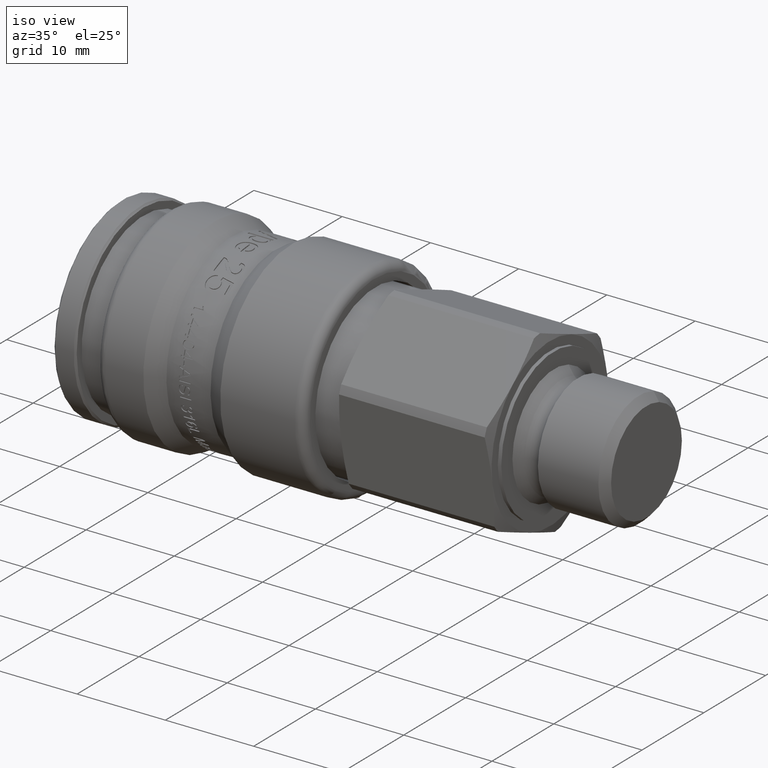
[diagram: clean part render]
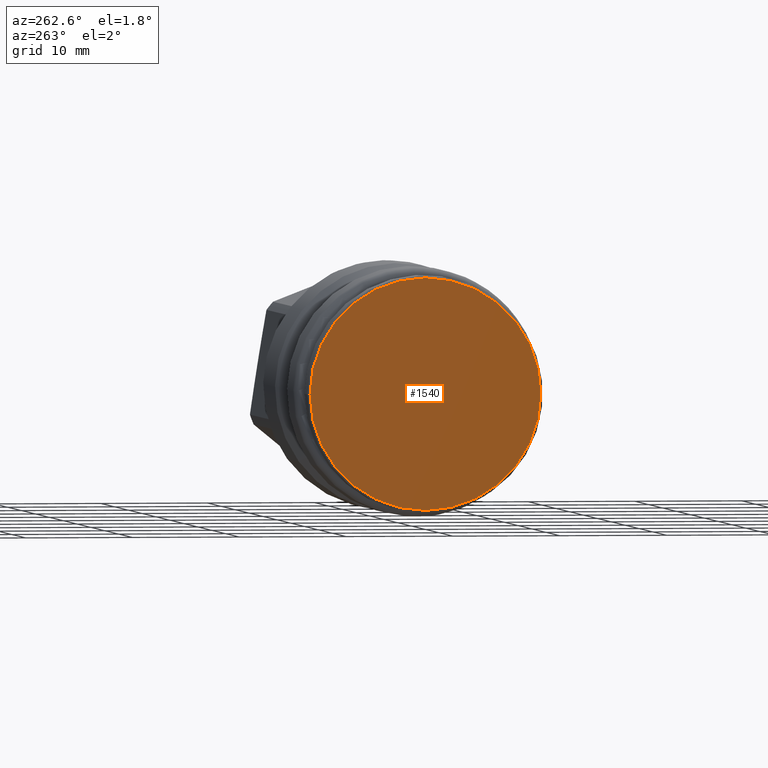
[diagram: tour spotlight — one face highlighted and labeled with its STEP entity id]
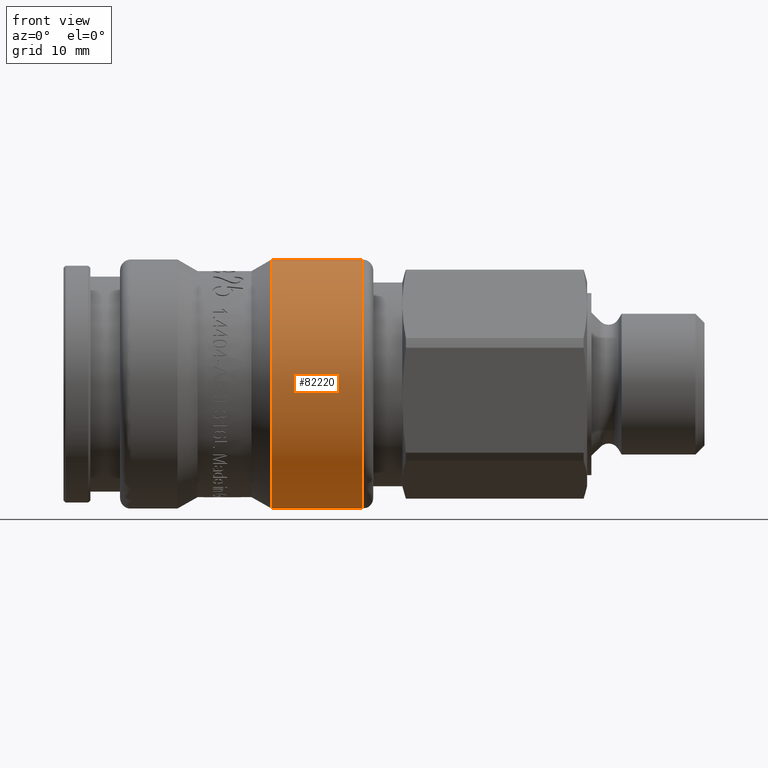
[diagram: tour spotlight — one face highlighted and labeled with its STEP entity id]
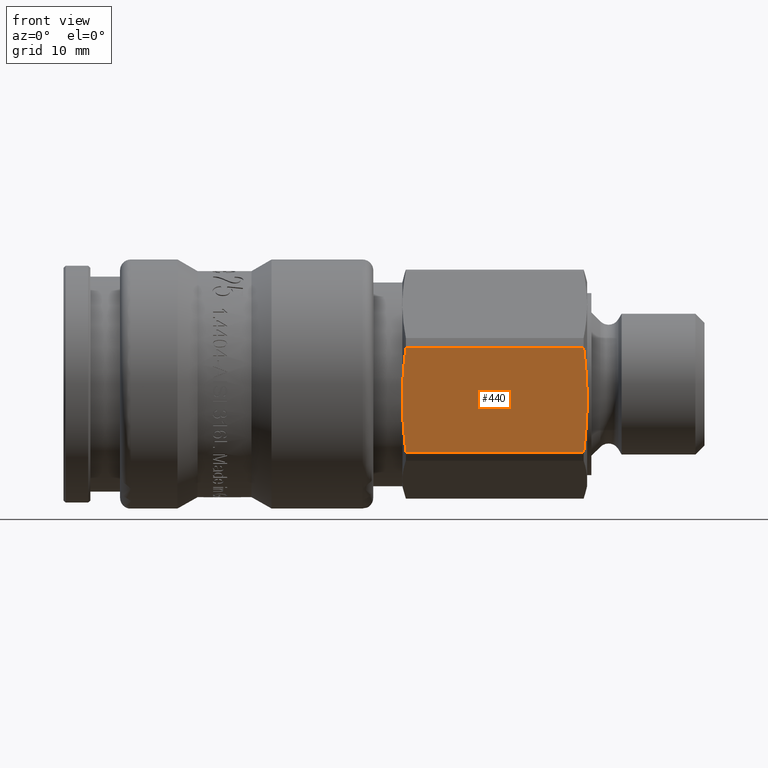
[diagram: tour spotlight — one face highlighted and labeled with its STEP entity id]
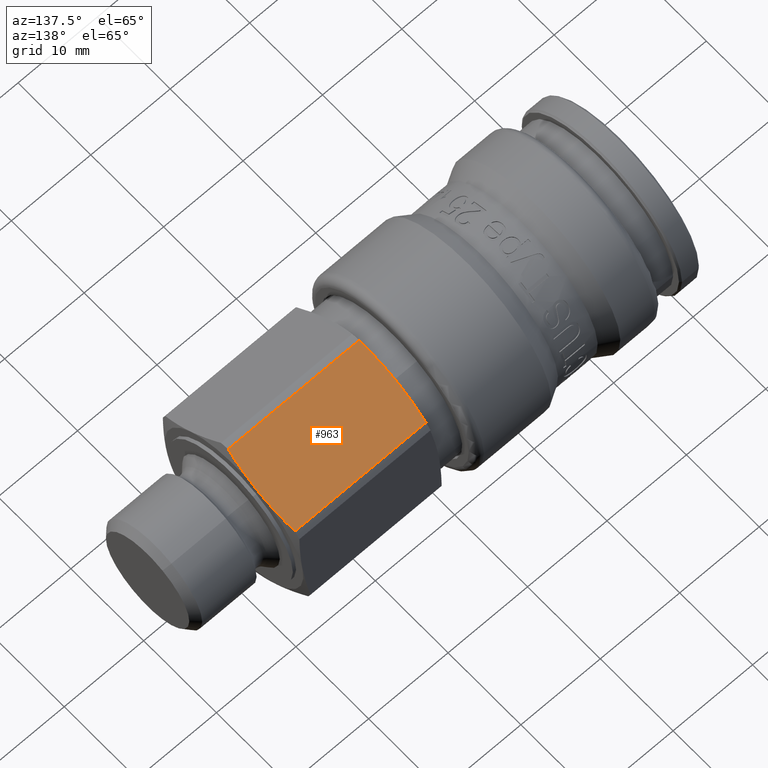
[diagram: tour spotlight — one face highlighted and labeled with its STEP entity id]
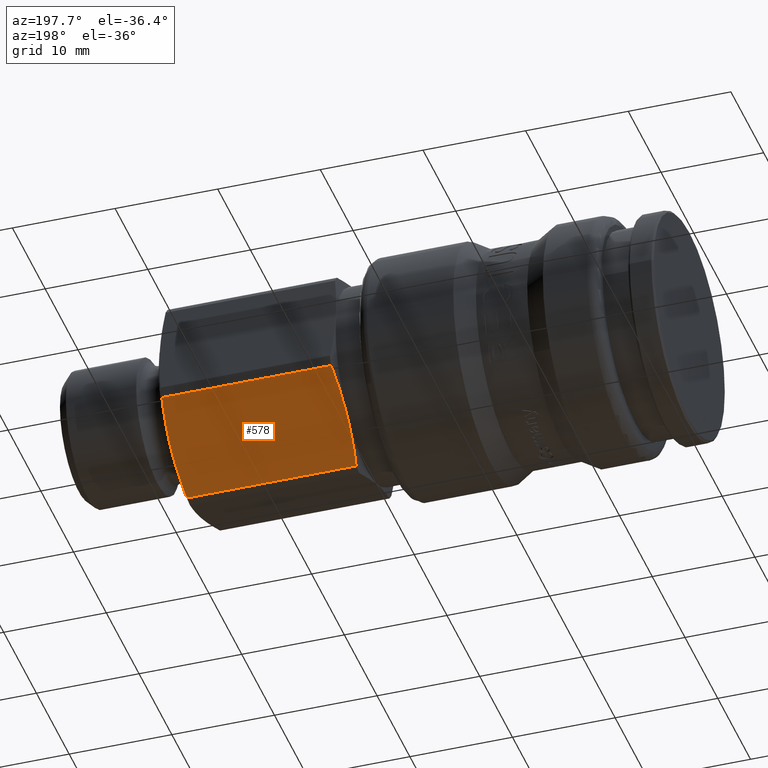
[diagram: tour spotlight — one face highlighted and labeled with its STEP entity id]
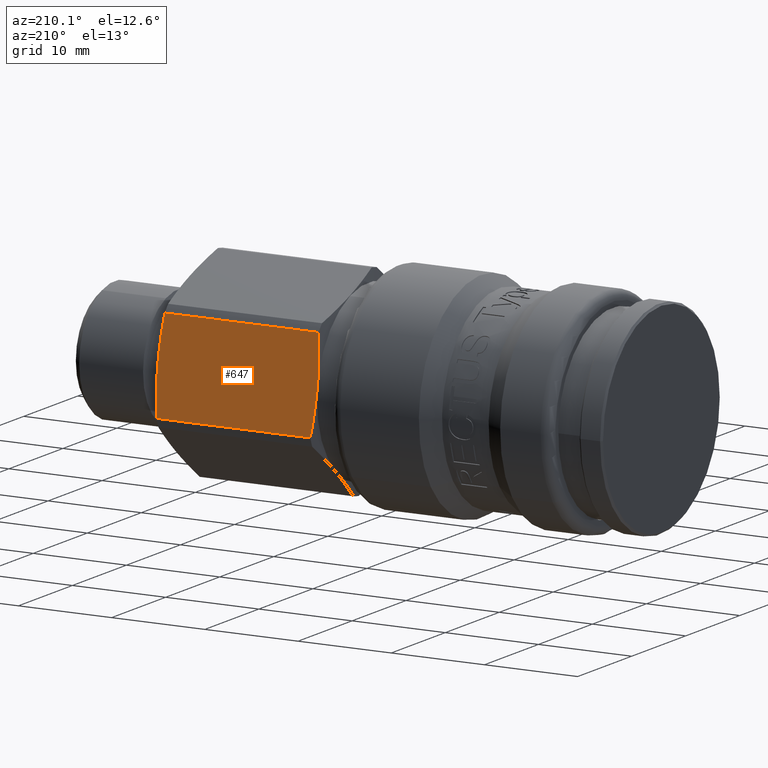
[diagram: tour spotlight — one face highlighted and labeled with its STEP entity id]
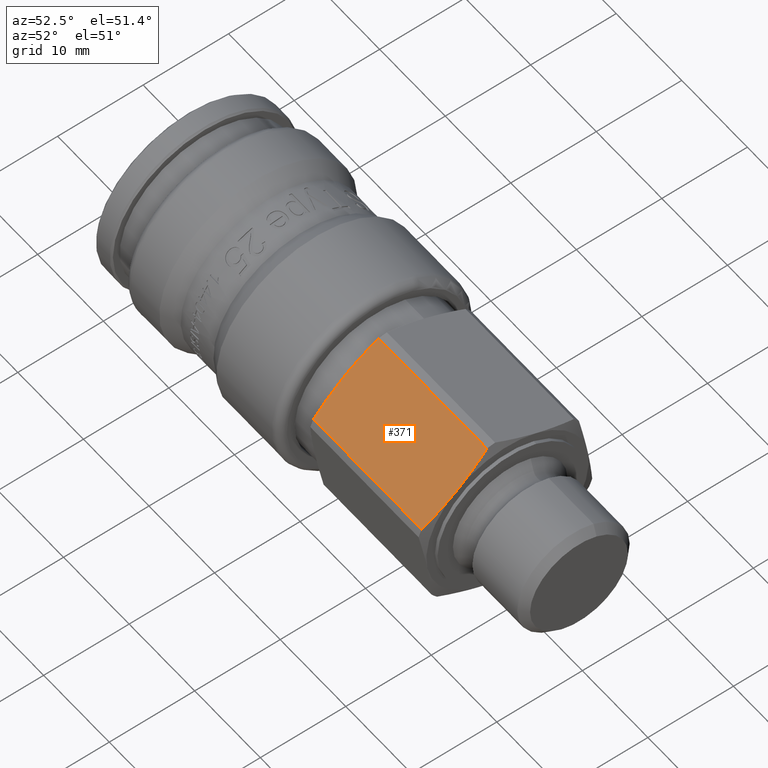
[diagram: tour spotlight — one face highlighted and labeled with its STEP entity id]
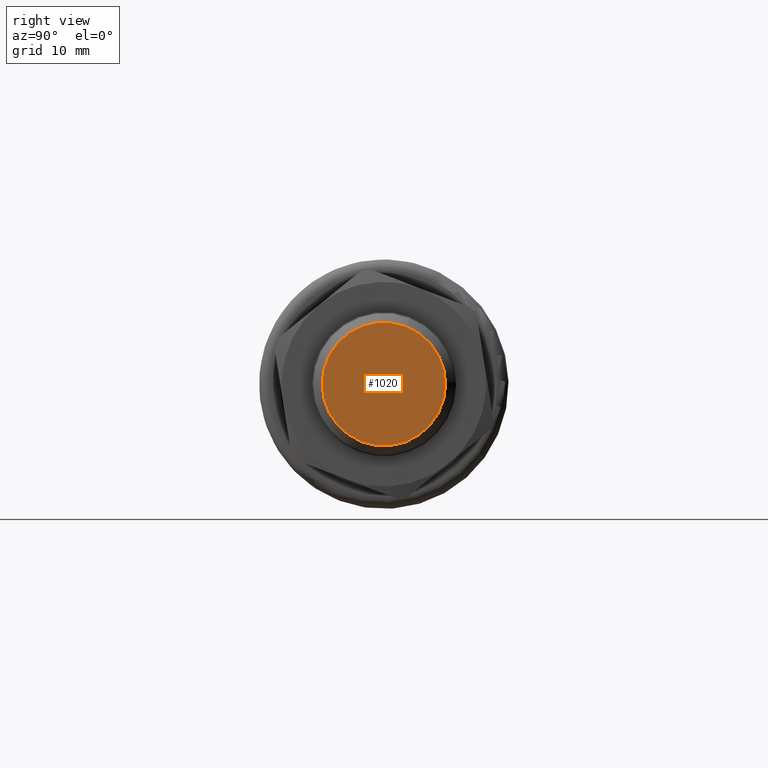
[diagram: tour spotlight — one face highlighted and labeled with its STEP entity id]
A machine part: a face-by-face anatomy tour. The part has 604 B-rep faces; the first image is the clean iso view, then the 8 largest visible faces are spotlighted one at a time (largest first), each with its STEP entity span.

Face 1 — auxiliary view, entity #1540. In plain terms, the highlighted planar face has unit normal (-1, 0, 0).
Definition (entity closure, byte-faithful):
#1524=CARTESIAN_POINT('',(0.0,8.525,0.0));
#1525=DIRECTION('',(-1.0,0.0,0.0));
#1526=DIRECTION('',(0.0,0.0,1.0));
#1527=AXIS2_PLACEMENT_3D('',#1524,#1525,#1526);
#1528=PLANE('',#1527);
#1529=CARTESIAN_POINT('',(0.0,10.800000000000001,1.322619E-015));
#1530=VERTEX_POINT('',#1529);
#1531=CARTESIAN_POINT('',(0.0,0.0,0.0));
#1532=DIRECTION('',(1.0,0.0,0.0));
#1533=DIRECTION('',(0.0,-1.0,0.0));
#1534=AXIS2_PLACEMENT_3D('',#1531,#1532,#1533);
#1535=CIRCLE('',#1534,10.800000000000001);
#1536=EDGE_CURVE('',#1530,#1530,#1535,.T.);
#1537=ORIENTED_EDGE('',*,*,#1536,.F.);
#1538=EDGE_LOOP('',(#1537));
#1539=FACE_OUTER_BOUND('',#1538,.T.);
#1540=ADVANCED_FACE('',(#1539),#1528,.T.);

Face 2 — front view, entity #82220. In plain terms, the highlighted cylindrical surface (bore or boss wall) has radius 11.575 mm, axis along (1, 0, 0).
Definition (entity closure, byte-faithful):
#82178=CARTESIAN_POINT('',(27.75,9.358353465031815,-6.8118900037748));
#82179=VERTEX_POINT('',#82178);
#82180=CARTESIAN_POINT('',(27.75,0.0,0.0));
#82181=DIRECTION('',(1.0,0.0,0.0));
#82182=DIRECTION('',(0.0,-0.80849705961398,0.588500216308838));
#82183=AXIS2_PLACEMENT_3D('',#82180,#82181,#82182);
#82184=CIRCLE('',#82183,11.574999999999999);
#82185=EDGE_CURVE('',#82179,#82179,#82184,.T.);
#82201=CARTESIAN_POINT('',(24.030977309068273,0.0,0.0));
#82202=DIRECTION('',(1.0,0.0,0.0));
#82203=DIRECTION('',(0.0,0.80849705961398,-0.588500216308838));
#82204=AXIS2_PLACEMENT_3D('',#82201,#82202,#82203);
#82205=CYLINDRICAL_SURFACE('',#82204,11.575000000000001);
#82206=CARTESIAN_POINT('',(19.311954618136543,9.358353465031815,-6.8118900037748));
#82207=VERTEX_POINT('',#82206);
#82208=CARTESIAN_POINT('',(19.311954618136543,0.0,0.0));
#82209=DIRECTION('',(1.0,0.0,0.0));
#82210=DIRECTION('',(0.0,0.80849705961398,-0.588500216308838));
#82211=AXIS2_PLACEMENT_3D('',#82208,#82209,#82210);
#82212=CIRCLE('',#82211,11.575000000000001);
#82213=EDGE_CURVE('',#82207,#82207,#82212,.T.);
#82214=ORIENTED_EDGE('',*,*,#82213,.T.);
#82215=EDGE_LOOP('',(#82214));
#82216=FACE_OUTER_BOUND('',#82215,.T.);
#82217=ORIENTED_EDGE('',*,*,#82185,.F.);
#82218=EDGE_LOOP('',(#82217));
#82219=FACE_BOUND('',#82218,.T.);
#82220=ADVANCED_FACE('',(#82216,#82219),#82205,.T.);

Face 3 — front view, entity #440. In plain terms, the highlighted planar face has unit normal (-0, 0.9876, 0.157).
Definition (entity closure, byte-faithful):
#372=CARTESIAN_POINT('',(29.574072984959162,-9.382217477405595,-1.491306543493032));
#373=DIRECTION('',(-2.127102E-016,0.987601839726904,0.156979636157161));
#374=DIRECTION('',(-5.903893E-033,0.156979636157161,-0.987601839726904));
#375=AXIS2_PLACEMENT_3D('',#372,#373,#374);
#376=PLANE('',#375);
#377=CARTESIAN_POINT('',(48.278460969082673,-10.155093129443589,3.371065637499162));
#378=VERTEX_POINT('',#377);
#379=CARTESIAN_POINT('',(48.600000000000009,-9.382217477405593,-1.491306543493031));
#380=VERTEX_POINT('',#379);
#381=CARTESIAN_POINT('',(48.278460969082673,-10.155093129443593,3.371065637499203));
#382=CARTESIAN_POINT('',(48.600000000000009,-9.745698600888815,0.795452650537993));
#383=CARTESIAN_POINT('',(48.600000000000023,-9.382217477405591,-1.491306543493032));
#391=(BOUNDED_CURVE()B_SPLINE_CURVE(2,(#381,#382,#383),.UNSPECIFIED.,.F.,.U.)B_SPLINE_CURVE_WITH_KNOTS((3,3),(0.0,0.493628243022418),.UNSPECIFIED.)CURVE()GEOMETRIC_REPRESENTATION_ITEM()RATIONAL_B_SPLINE_CURVE((1.0,1.031095482841787,1.0))REPRESENTATION_ITEM(''));
#392=EDGE_CURVE('',#378,#380,#391,.T.);
#393=ORIENTED_EDGE('',*,*,#392,.F.);
#394=CARTESIAN_POINT('',(31.77823776072815,-10.155093129443593,3.371065637499162));
#395=VERTEX_POINT('',#394);
#396=CARTESIAN_POINT('',(31.778237760728146,-10.155093129443591,3.371065637499167));
#397=DIRECTION('',(1.0,0.0,0.0));
#398=VECTOR('',#397,16.500223208354519);
#399=LINE('',#396,#398);
#400=EDGE_CURVE('',#395,#378,#399,.T.);
#401=ORIENTED_EDGE('',*,*,#400,.F.);
#402=CARTESIAN_POINT('',(31.77823776072815,-8.609341825367599,-6.353678724485226));
#403=VERTEX_POINT('',#402);
#404=CARTESIAN_POINT('',(31.77823776072815,-8.609341825367595,-6.353678724485258));
#405=CARTESIAN_POINT('',(31.171220150958948,-9.382217477405598,-1.491306543493026));
#406=CARTESIAN_POINT('',(31.77823776072815,-10.155093129443598,3.371065637499197));
#414=(BOUNDED_CURVE()B_SPLINE_CURVE(2,(#404,#405,#406),.UNSPECIFIED.,.F.,.U.)B_SPLINE_CURVE_WITH_KNOTS((3,3),(0.0,0.986780367628046),.UNSPECIFIED.)CURVE()GEOMETRIC_REPRESENTATION_ITEM()RATIONAL_B_SPLINE_CURVE((1.0,1.126315789473696,1.0))REPRESENTATION_ITEM(''));
#415=EDGE_CURVE('',#403,#395,#414,.T.);
#416=ORIENTED_EDGE('',*,*,#415,.F.);
#417=CARTESIAN_POINT('',(48.278460969082673,-8.609341825367595,-6.353678724485224));
#418=VERTEX_POINT('',#417);
#419=CARTESIAN_POINT('',(48.278460969082666,-8.609341825367595,-6.35367872448523));
#420=DIRECTION('',(-1.0,0.0,0.0));
#421=VECTOR('',#420,16.500223208354519);
#422=LINE('',#419,#421);
#423=EDGE_CURVE('',#418,#403,#422,.T.);
#424=ORIENTED_EDGE('',*,*,#423,.F.);
#425=CARTESIAN_POINT('',(48.600000000000023,-9.382217477405591,-1.491306543493032));
#426=CARTESIAN_POINT('',(48.600000000000023,-9.018736353922366,-3.778065737524065));
#427=CARTESIAN_POINT('',(48.278460969082673,-8.60934182536759,-6.353678724485262));
#435=(BOUNDED_CURVE()B_SPLINE_CURVE(2,(#425,#426,#427),.UNSPECIFIED.,.F.,.U.)B_SPLINE_CURVE_WITH_KNOTS((3,3),(0.493628243022418,0.987256486044835),.UNSPECIFIED.)CURVE()GEOMETRIC_REPRESENTATION_ITEM()RATIONAL_B_SPLINE_CURVE((1.0,1.031095482841751,1.0))REPRESENTATION_ITEM(''));
#436=EDGE_CURVE('',#380,#418,#435,.T.);
#437=ORIENTED_EDGE('',*,*,#436,.F.);
#438=EDGE_LOOP('',(#393,#401,#416,#424,#437));
#439=FACE_OUTER_BOUND('',#438,.T.);
#440=ADVANCED_FACE('',(#439),#376,.F.);

Face 4 — auxiliary view, entity #963. In plain terms, the highlighted planar face has unit normal (-0, -0.3579, -0.9338).
Definition (entity closure, byte-faithful):
#665=CARTESIAN_POINT('',(31.77823776072815,-1.197776270205111,10.632748092874845));
#666=VERTEX_POINT('',#665);
#674=CARTESIAN_POINT('',(31.77823776072815,7.996975044620859,7.10903580914538));
#675=VERTEX_POINT('',#674);
#676=CARTESIAN_POINT('',(31.77823776072815,-1.197776270205144,10.632748092874857));
#677=CARTESIAN_POINT('',(31.171220150958948,3.399599387207874,8.870891951010112));
#678=CARTESIAN_POINT('',(31.77823776072815,7.996975044620892,7.109035809145368));
#686=(BOUNDED_CURVE()B_SPLINE_CURVE(2,(#676,#677,#678),.UNSPECIFIED.,.F.,.U.)B_SPLINE_CURVE_WITH_KNOTS((3,3),(0.0,0.986780367628047),.UNSPECIFIED.)CURVE()GEOMETRIC_REPRESENTATION_ITEM()RATIONAL_B_SPLINE_CURVE((1.0,1.126315789473696,1.0))REPRESENTATION_ITEM(''));
#687=EDGE_CURVE('',#666,#675,#686,.T.);
#737=CARTESIAN_POINT('',(48.278460969082673,-1.197776270205111,10.63274809287484));
#738=VERTEX_POINT('',#737);
#746=CARTESIAN_POINT('',(48.278460969082666,-1.197776270205114,10.632748092874845));
#747=DIRECTION('',(-1.0,0.0,0.0));
#748=VECTOR('',#747,16.500223208354519);
#749=LINE('',#746,#748);
#750=EDGE_CURVE('',#738,#666,#749,.T.);
#763=CARTESIAN_POINT('',(48.278460969082673,7.996975044620855,7.109035809145378));
#764=VERTEX_POINT('',#763);
#765=CARTESIAN_POINT('',(31.778237760728146,7.99697504462086,7.109035809145378));
#766=DIRECTION('',(1.0,0.0,0.0));
#767=VECTOR('',#766,16.500223208354519);
#768=LINE('',#765,#767);
#769=EDGE_CURVE('',#675,#764,#768,.T.);
#841=CARTESIAN_POINT('',(48.600000000000023,3.399599387207872,8.870891951010107));
#842=VERTEX_POINT('',#841);
#850=CARTESIAN_POINT('',(48.600000000000023,3.399599387207873,8.870891951010108));
#851=CARTESIAN_POINT('',(48.600000000000023,1.237467271097817,9.699487661293023));
#852=CARTESIAN_POINT('',(48.278460969082673,-1.197776270205111,10.63274809287484));
#860=(BOUNDED_CURVE()B_SPLINE_CURVE(2,(#850,#851,#852),.UNSPECIFIED.,.F.,.U.)B_SPLINE_CURVE_WITH_KNOTS((3,3),(0.493628243022414,0.987256486044827),.UNSPECIFIED.)CURVE()GEOMETRIC_REPRESENTATION_ITEM()RATIONAL_B_SPLINE_CURVE((1.0,1.031095482841818,1.0))REPRESENTATION_ITEM(''));
#861=EDGE_CURVE('',#842,#738,#860,.T.);
#874=CARTESIAN_POINT('',(48.278460969082673,7.996975044620856,7.109035809145377));
#875=CARTESIAN_POINT('',(48.600000000000023,5.561731503317928,8.042296240727193));
#876=CARTESIAN_POINT('',(48.600000000000023,3.399599387207873,8.870891951010108));
#884=(BOUNDED_CURVE()B_SPLINE_CURVE(2,(#874,#875,#876),.UNSPECIFIED.,.F.,.U.)B_SPLINE_CURVE_WITH_KNOTS((3,3),(0.0,0.493628243022414),.UNSPECIFIED.)CURVE()GEOMETRIC_REPRESENTATION_ITEM()RATIONAL_B_SPLINE_CURVE((1.0,1.031095482841818,1.0))REPRESENTATION_ITEM(''));
#885=EDGE_CURVE('',#764,#842,#884,.T.);
#951=CARTESIAN_POINT('',(29.574072984959162,3.399599387207874,8.870891951010112));
#952=DIRECTION('',(-2.127102E-016,-0.357852567074513,-0.933778100106327));
#953=DIRECTION('',(-1.180779E-032,-0.933778100106327,0.357852567074513));
#954=AXIS2_PLACEMENT_3D('',#951,#952,#953);
#955=PLANE('',#954);
#956=ORIENTED_EDGE('',*,*,#885,.F.);
#957=ORIENTED_EDGE('',*,*,#769,.F.);
#958=ORIENTED_EDGE('',*,*,#687,.F.);
#959=ORIENTED_EDGE('',*,*,#750,.F.);
#960=ORIENTED_EDGE('',*,*,#861,.F.);
#961=EDGE_LOOP('',(#956,#957,#958,#959,#960));
#962=FACE_OUTER_BOUND('',#961,.T.);
#963=ADVANCED_FACE('',(#962),#955,.F.);

Face 5 — auxiliary view, entity #578. In plain terms, the highlighted planar face has unit normal (-0, -0.6297, 0.7768).
Definition (entity closure, byte-faithful):
#510=CARTESIAN_POINT('',(29.574072984959162,5.982618090197725,-7.379585407517084));
#511=DIRECTION('',(-2.127102E-016,-0.629749272652392,0.776798463949166));
#512=DIRECTION('',(-1.180779E-032,0.776798463949166,0.629749272652392));
#513=AXIS2_PLACEMENT_3D('',#510,#511,#512);
#514=PLANE('',#513);
#515=CARTESIAN_POINT('',(48.278460969082673,2.158118084822736,-10.480101446644543));
#516=VERTEX_POINT('',#515);
#517=CARTESIAN_POINT('',(48.600000000000009,5.982618090197722,-7.379585407517082));
#518=VERTEX_POINT('',#517);
#519=CARTESIAN_POINT('',(48.278460969082673,2.158118084822707,-10.480101446644564));
#520=CARTESIAN_POINT('',(48.600000000000023,4.18396709757086,-8.837748891265155));
#521=CARTESIAN_POINT('',(48.600000000000023,5.982618090197722,-7.379585407517082));
#529=(BOUNDED_CURVE()B_SPLINE_CURVE(2,(#519,#520,#521),.UNSPECIFIED.,.F.,.U.)B_SPLINE_CURVE_WITH_KNOTS((3,3),(0.0,0.493628243022417),.UNSPECIFIED.)CURVE()GEOMETRIC_REPRESENTATION_ITEM()RATIONAL_B_SPLINE_CURVE((1.0,1.031095482841759,1.0))REPRESENTATION_ITEM(''));
#530=EDGE_CURVE('',#516,#518,#529,.T.);
#531=ORIENTED_EDGE('',*,*,#530,.F.);
#532=CARTESIAN_POINT('',(31.77823776072815,2.158118084822738,-10.480101446644545));
#533=VERTEX_POINT('',#532);
#534=CARTESIAN_POINT('',(31.778237760728146,2.158118084822733,-10.480101446644547));
#535=DIRECTION('',(1.0,0.0,0.0));
#536=VECTOR('',#535,16.500223208354519);
#537=LINE('',#534,#536);
#538=EDGE_CURVE('',#533,#516,#537,.T.);
#539=ORIENTED_EDGE('',*,*,#538,.F.);
#540=CARTESIAN_POINT('',(31.77823776072815,9.807118095572712,-4.279069368389624));
#541=VERTEX_POINT('',#540);
#542=CARTESIAN_POINT('',(31.77823776072815,9.807118095572738,-4.2790693683896));
#543=CARTESIAN_POINT('',(31.171220150958948,5.982618090197729,-7.379585407517083));
#544=CARTESIAN_POINT('',(31.77823776072815,2.158118084822709,-10.48010144664457));
#552=(BOUNDED_CURVE()B_SPLINE_CURVE(2,(#542,#543,#544),.UNSPECIFIED.,.F.,.U.)B_SPLINE_CURVE_WITH_KNOTS((3,3),(0.0,0.986780367628046),.UNSPECIFIED.)CURVE()GEOMETRIC_REPRESENTATION_ITEM()RATIONAL_B_SPLINE_CURVE((1.0,1.126315789473696,1.0))REPRESENTATION_ITEM(''));
#553=EDGE_CURVE('',#541,#533,#552,.T.);
#554=ORIENTED_EDGE('',*,*,#553,.F.);
#555=CARTESIAN_POINT('',(48.278460969082673,9.807118095572708,-4.27906936838962));
#556=VERTEX_POINT('',#555);
#557=CARTESIAN_POINT('',(48.278460969082666,9.807118095572713,-4.279069368389619));
#558=DIRECTION('',(-1.0,0.0,0.0));
#559=VECTOR('',#558,16.500223208354519);
#560=LINE('',#557,#559);
#561=EDGE_CURVE('',#556,#541,#560,.T.);
#562=ORIENTED_EDGE('',*,*,#561,.F.);
#563=CARTESIAN_POINT('',(48.600000000000023,5.982618090197722,-7.379585407517082));
#564=CARTESIAN_POINT('',(48.600000000000023,7.781269082824575,-5.921421923769017));
#565=CARTESIAN_POINT('',(48.278460969082673,9.807118095572735,-4.279069368389598));
#573=(BOUNDED_CURVE()B_SPLINE_CURVE(2,(#563,#564,#565),.UNSPECIFIED.,.F.,.U.)B_SPLINE_CURVE_WITH_KNOTS((3,3),(0.493628243022417,0.987256486044834),.UNSPECIFIED.)CURVE()GEOMETRIC_REPRESENTATION_ITEM()RATIONAL_B_SPLINE_CURVE((1.0,1.031095482841774,1.0))REPRESENTATION_ITEM(''));
#574=EDGE_CURVE('',#518,#556,#573,.T.);
#575=ORIENTED_EDGE('',*,*,#574,.F.);
#576=EDGE_LOOP('',(#531,#539,#554,#562,#575));
#577=FACE_OUTER_BOUND('',#576,.T.);
#578=ADVANCED_FACE('',(#577),#514,.F.);

Face 6 — auxiliary view, entity #647. In plain terms, the highlighted planar face has unit normal (-0, -0.9876, -0.157).
Definition (entity closure, byte-faithful):
#579=CARTESIAN_POINT('',(29.574072984959162,9.382217477405597,1.491306543493028));
#580=DIRECTION('',(-2.127102E-016,-0.987601839726904,-0.156979636157161));
#581=DIRECTION('',(-5.903893E-033,-0.156979636157161,0.987601839726904));
#582=AXIS2_PLACEMENT_3D('',#579,#580,#581);
#583=PLANE('',#582);
#584=CARTESIAN_POINT('',(48.278460969082673,10.155093129443586,-3.371065637499165));
#585=VERTEX_POINT('',#584);
#586=CARTESIAN_POINT('',(48.600000000000009,9.382217477405593,1.491306543493027));
#587=VERTEX_POINT('',#586);
#588=CARTESIAN_POINT('',(48.278460969082673,10.155093129443593,-3.371065637499205));
#589=CARTESIAN_POINT('',(48.600000000000009,9.745698600888815,-0.795452650538008));
#590=CARTESIAN_POINT('',(48.600000000000023,9.382217477405593,1.491306543493026));
#598=(BOUNDED_CURVE()B_SPLINE_CURVE(2,(#588,#589,#590),.UNSPECIFIED.,.F.,.U.)B_SPLINE_CURVE_WITH_KNOTS((3,3),(0.0,0.493628243022417),.UNSPECIFIED.)CURVE()GEOMETRIC_REPRESENTATION_ITEM()RATIONAL_B_SPLINE_CURVE((1.0,1.031095482841757,1.0))REPRESENTATION_ITEM(''));
#599=EDGE_CURVE('',#585,#587,#598,.T.);
#600=ORIENTED_EDGE('',*,*,#599,.F.);
#601=CARTESIAN_POINT('',(31.77823776072815,10.155093129443591,-3.371065637499165));
#602=VERTEX_POINT('',#601);
#603=CARTESIAN_POINT('',(31.778237760728146,10.155093129443589,-3.371065637499171));
#604=DIRECTION('',(1.0,0.0,0.0));
#605=VECTOR('',#604,16.500223208354519);
#606=LINE('',#603,#605);
#607=EDGE_CURVE('',#602,#585,#606,.T.);
#608=ORIENTED_EDGE('',*,*,#607,.F.);
#609=CARTESIAN_POINT('',(31.77823776072815,8.609341825367601,6.353678724485222));
#610=VERTEX_POINT('',#609);
#611=CARTESIAN_POINT('',(31.77823776072815,8.609341825367595,6.353678724485253));
#612=CARTESIAN_POINT('',(31.171220150958948,9.382217477405598,1.491306543493024));
#613=CARTESIAN_POINT('',(31.77823776072815,10.155093129443596,-3.371065637499196));
#621=(BOUNDED_CURVE()B_SPLINE_CURVE(2,(#611,#612,#613),.UNSPECIFIED.,.F.,.U.)B_SPLINE_CURVE_WITH_KNOTS((3,3),(0.0,0.986780367628045),.UNSPECIFIED.)CURVE()GEOMETRIC_REPRESENTATION_ITEM()RATIONAL_B_SPLINE_CURVE((1.0,1.126315789473696,1.0))REPRESENTATION_ITEM(''));
#622=EDGE_CURVE('',#610,#602,#621,.T.);
#623=ORIENTED_EDGE('',*,*,#622,.F.);
#624=CARTESIAN_POINT('',(48.278460969082673,8.609341825367597,6.353678724485221));
#625=VERTEX_POINT('',#624);
#626=CARTESIAN_POINT('',(48.278460969082666,8.609341825367599,6.353678724485226));
#627=DIRECTION('',(-1.0,0.0,0.0));
#628=VECTOR('',#627,16.500223208354519);
#629=LINE('',#626,#628);
#630=EDGE_CURVE('',#625,#610,#629,.T.);
#631=ORIENTED_EDGE('',*,*,#630,.F.);
#632=CARTESIAN_POINT('',(48.600000000000023,9.382217477405593,1.491306543493026));
#633=CARTESIAN_POINT('',(48.600000000000023,9.018736353922369,3.778065737524063));
#634=CARTESIAN_POINT('',(48.278460969082673,8.609341825367592,6.353678724485262));
#642=(BOUNDED_CURVE()B_SPLINE_CURVE(2,(#632,#633,#634),.UNSPECIFIED.,.F.,.U.)B_SPLINE_CURVE_WITH_KNOTS((3,3),(0.493628243022417,0.987256486044835),.UNSPECIFIED.)CURVE()GEOMETRIC_REPRESENTATION_ITEM()RATIONAL_B_SPLINE_CURVE((1.0,1.031095482841761,1.0))REPRESENTATION_ITEM(''));
#643=EDGE_CURVE('',#587,#625,#642,.T.);
#644=ORIENTED_EDGE('',*,*,#643,.F.);
#645=EDGE_LOOP('',(#600,#608,#623,#631,#644));
#646=FACE_OUTER_BOUND('',#645,.T.);
#647=ADVANCED_FACE('',(#646),#583,.F.);

Face 7 — auxiliary view, entity #371. In plain terms, the highlighted planar face has unit normal (-0, 0.6297, -0.7768).
Definition (entity closure, byte-faithful):
#303=CARTESIAN_POINT('',(29.574072984959162,-5.982618090197729,7.379585407517082));
#304=DIRECTION('',(-2.127102E-016,0.629749272652392,-0.776798463949166));
#305=DIRECTION('',(1.180779E-032,-0.776798463949166,-0.629749272652392));
#306=AXIS2_PLACEMENT_3D('',#303,#304,#305);
#307=PLANE('',#306);
#308=CARTESIAN_POINT('',(48.278460969082673,-2.15811808482274,10.480101446644543));
#309=VERTEX_POINT('',#308);
#310=CARTESIAN_POINT('',(48.600000000000009,-5.982618090197727,7.379585407517078));
#311=VERTEX_POINT('',#310);
#312=CARTESIAN_POINT('',(48.278460969082673,-2.158118084822718,10.480101446644563));
#313=CARTESIAN_POINT('',(48.600000000000009,-4.183967097570853,8.837748891265164));
#314=CARTESIAN_POINT('',(48.600000000000009,-5.982618090197728,7.379585407517078));
#322=(BOUNDED_CURVE()B_SPLINE_CURVE(2,(#312,#313,#314),.UNSPECIFIED.,.F.,.U.)B_SPLINE_CURVE_WITH_KNOTS((3,3),(0.0,0.493628243022417),.UNSPECIFIED.)CURVE()GEOMETRIC_REPRESENTATION_ITEM()RATIONAL_B_SPLINE_CURVE((1.0,1.031095482841759,1.0))REPRESENTATION_ITEM(''));
#323=EDGE_CURVE('',#309,#311,#322,.T.);
#324=ORIENTED_EDGE('',*,*,#323,.F.);
#325=CARTESIAN_POINT('',(31.77823776072815,-2.158118084822744,10.480101446644545));
#326=VERTEX_POINT('',#325);
#327=CARTESIAN_POINT('',(31.778237760728146,-2.158118084822738,10.480101446644547));
#328=DIRECTION('',(1.0,0.0,0.0));
#329=VECTOR('',#328,16.500223208354519);
#330=LINE('',#327,#329);
#331=EDGE_CURVE('',#326,#309,#330,.T.);
#332=ORIENTED_EDGE('',*,*,#331,.F.);
#333=CARTESIAN_POINT('',(31.77823776072815,-9.807118095572715,4.279069368389615));
#334=VERTEX_POINT('',#333);
#335=CARTESIAN_POINT('',(31.77823776072815,-9.807118095572742,4.279069368389593));
#336=CARTESIAN_POINT('',(31.171220150958948,-5.982618090197716,7.379585407517093));
#337=CARTESIAN_POINT('',(31.77823776072815,-2.158118084822716,10.480101446644568));
#345=(BOUNDED_CURVE()B_SPLINE_CURVE(2,(#335,#336,#337),.UNSPECIFIED.,.F.,.U.)B_SPLINE_CURVE_WITH_KNOTS((3,3),(0.0,0.986780367628046),.UNSPECIFIED.)CURVE()GEOMETRIC_REPRESENTATION_ITEM()RATIONAL_B_SPLINE_CURVE((1.0,1.126315789473696,1.0))REPRESENTATION_ITEM(''));
#346=EDGE_CURVE('',#334,#326,#345,.T.);
#347=ORIENTED_EDGE('',*,*,#346,.F.);
#348=CARTESIAN_POINT('',(48.278460969082673,-9.807118095572713,4.279069368389612));
#349=VERTEX_POINT('',#348);
#350=CARTESIAN_POINT('',(48.278460969082666,-9.807118095572717,4.27906936838961));
#351=DIRECTION('',(-1.0,0.0,0.0));
#352=VECTOR('',#351,16.500223208354519);
#353=LINE('',#350,#352);
#354=EDGE_CURVE('',#349,#334,#353,.T.);
#355=ORIENTED_EDGE('',*,*,#354,.F.);
#356=CARTESIAN_POINT('',(48.600000000000009,-5.982618090197728,7.379585407517078));
#357=CARTESIAN_POINT('',(48.600000000000009,-7.781269082824591,5.921421923769001));
#358=CARTESIAN_POINT('',(48.278460969082673,-9.807118095572736,4.279069368389593));
#366=(BOUNDED_CURVE()B_SPLINE_CURVE(2,(#356,#357,#358),.UNSPECIFIED.,.F.,.U.)B_SPLINE_CURVE_WITH_KNOTS((3,3),(0.493628243022417,0.987256486044833),.UNSPECIFIED.)CURVE()GEOMETRIC_REPRESENTATION_ITEM()RATIONAL_B_SPLINE_CURVE((1.0,1.031095482841801,1.0))REPRESENTATION_ITEM(''));
#367=EDGE_CURVE('',#311,#349,#366,.T.);
#368=ORIENTED_EDGE('',*,*,#367,.F.);
#369=EDGE_LOOP('',(#324,#332,#347,#355,#368));
#370=FACE_OUTER_BOUND('',#369,.T.);
#371=ADVANCED_FACE('',(#370),#307,.F.);

Face 8 — right view, entity #1020. In plain terms, the highlighted planar face has unit normal (1, 0, 0).
Definition (entity closure, byte-faithful):
#969=CARTESIAN_POINT('',(59.500000000000021,2.049958430486348,5.349147846459095));
#970=VERTEX_POINT('',#969);
#971=CARTESIAN_POINT('',(59.500000000000021,0.0,0.0));
#972=DIRECTION('',(-1.0,0.0,0.0));
#973=DIRECTION('',(0.0,-0.357852567074513,-0.933778100106327));
#974=AXIS2_PLACEMENT_3D('',#971,#972,#973);
#975=CIRCLE('',#974,5.728500000000001);
#976=EDGE_CURVE('',#970,#970,#975,.T.);
#1012=CARTESIAN_POINT('',(59.500000000000021,2.02696640305181,5.289152603527263));
#1013=DIRECTION('',(1.0,0.0,0.0));
#1014=DIRECTION('',(0.0,0.933778100106327,-0.357852567074513));
#1015=AXIS2_PLACEMENT_3D('',#1012,#1013,#1014);
#1016=PLANE('',#1015);
#1017=ORIENTED_EDGE('',*,*,#976,.F.);
#1018=EDGE_LOOP('',(#1017));
#1019=FACE_OUTER_BOUND('',#1018,.T.);
#1020=ADVANCED_FACE('',(#1019),#1016,.T.);